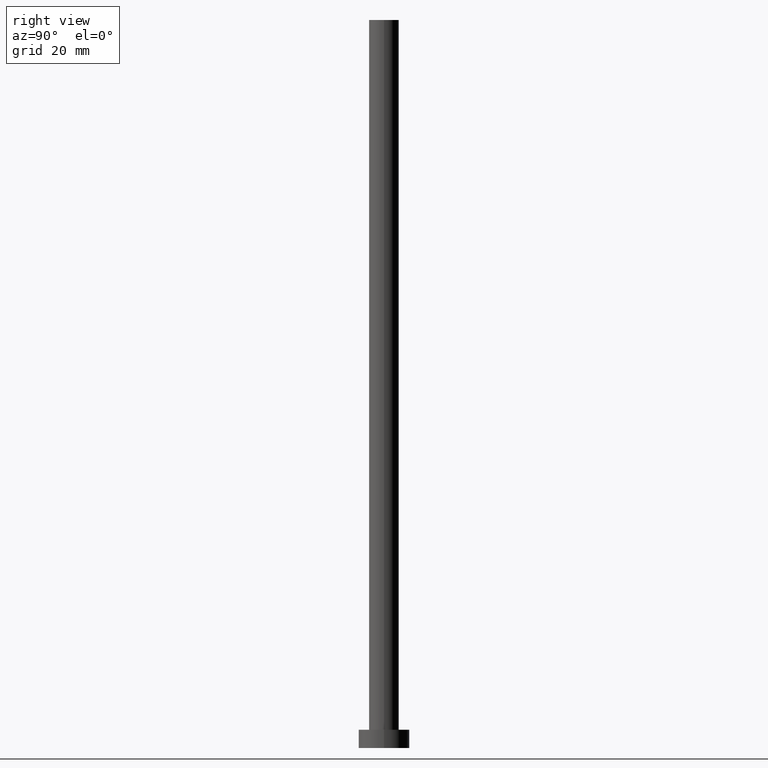
[diagram: clean part render]
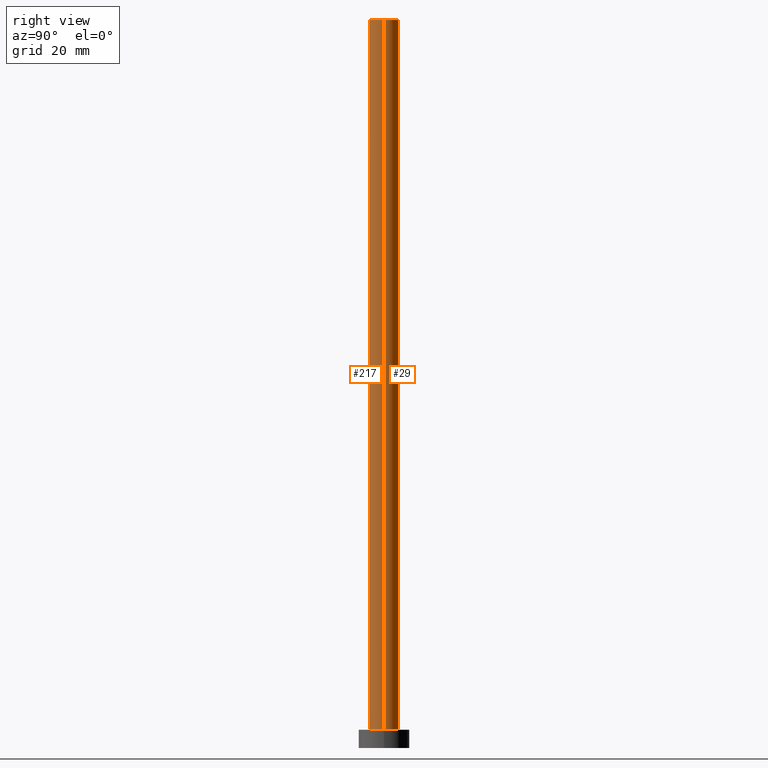
[diagram: same view with one multi-face feature highlighted, each face labeled with its STEP entity id]
A machine part, right view. The highlighted faces form ONE feature: a constant-radius fillet chain: 2 tangent blend faces with common blend radius 4.1 mm. The faces share edges in the B-rep.
Their STEP definitions:
[1] entity #29 (Cylinder):
#6 = EDGE_CURVE ( 'NONE', #192, #249, #180, .T. ) ;
#15 = CARTESIAN_POINT ( 'NONE',  ( 0.000000000000000000, 0.000000000000000000, 200.0000000000000000 ) ) ;
#24 = ORIENTED_EDGE ( 'NONE', *, *, #138, .T. ) ;
#29 = ADVANCED_FACE ( 'NONE', ( #201 ), #73, .T. ) ;
#47 = EDGE_CURVE ( 'NONE', #130, #192, #154, .T. ) ;
#49 = EDGE_LOOP ( 'NONE', ( #153, #24, #80, #78 ) ) ;
#55 = CARTESIAN_POINT ( 'NONE',  ( 0.000000000000000000, 0.000000000000000000, 200.0000000000000000 ) ) ;
#57 = DIRECTION ( 'NONE',  ( 0.000000000000000000, 0.000000000000000000, 1.000000000000000000 ) ) ;
#58 = CARTESIAN_POINT ( 'NONE',  ( 4.099999999999999645, 5.021051876504147385E-16, 5.000000000000000000 ) ) ;
#59 = AXIS2_PLACEMENT_3D ( 'NONE', #55, #75, #197 ) ;
#62 = LINE ( 'NONE', #236, #229 ) ;
#73 = CYLINDRICAL_SURFACE ( 'NONE', #206, 4.099999999999999645 ) ;
#74 = CARTESIAN_POINT ( 'NONE',  ( -4.099999999999999645, 0.000000000000000000, 200.0000000000000000 ) ) ;
#75 = DIRECTION ( 'NONE',  ( 0.000000000000000000, 0.000000000000000000, 1.000000000000000000 ) ) ;
#78 = ORIENTED_EDGE ( 'NONE', *, *, #6, .F. ) ;
#80 = ORIENTED_EDGE ( 'NONE', *, *, #213, .T. ) ;
#94 = CIRCLE ( 'NONE', #239, 4.099999999999999645 ) ;
#127 = CARTESIAN_POINT ( 'NONE',  ( 4.099999999999999645, 5.021051876504147385E-16, 200.0000000000000000 ) ) ;
#130 = VERTEX_POINT ( 'NONE', #127 ) ;
#137 = CARTESIAN_POINT ( 'NONE',  ( -4.099999999999999645, 0.000000000000000000, 200.0000000000000000 ) ) ;
#138 = EDGE_CURVE ( 'NONE', #130, #174, #62, .T. ) ;
#141 = DIRECTION ( 'NONE',  ( -0.000000000000000000, -0.000000000000000000, -1.000000000000000000 ) ) ;
#144 = DIRECTION ( 'NONE',  ( -0.000000000000000000, -0.000000000000000000, -1.000000000000000000 ) ) ;
#153 = ORIENTED_EDGE ( 'NONE', *, *, #47, .F. ) ;
#154 = CIRCLE ( 'NONE', #59, 4.099999999999999645 ) ;
#168 = DIRECTION ( 'NONE',  ( -1.000000000000000000, 0.000000000000000000, 0.000000000000000000 ) ) ;
#169 = CARTESIAN_POINT ( 'NONE',  ( -4.099999999999999645, 0.000000000000000000, 5.000000000000000000 ) ) ;
#174 = VERTEX_POINT ( 'NONE', #58 ) ;
#180 = LINE ( 'NONE', #74, #215 ) ;
#192 = VERTEX_POINT ( 'NONE', #137 ) ;
#197 = DIRECTION ( 'NONE',  ( 1.000000000000000000, 0.000000000000000000, 0.000000000000000000 ) ) ;
#201 = FACE_OUTER_BOUND ( 'NONE', #49, .T. ) ;
#206 = AXIS2_PLACEMENT_3D ( 'NONE', #15, #225, #168 ) ;
#213 = EDGE_CURVE ( 'NONE', #174, #249, #94, .T. ) ;
#215 = VECTOR ( 'NONE', #144, 1000.000000000000000 ) ;
#222 = DIRECTION ( 'NONE',  ( 1.000000000000000000, 0.000000000000000000, 0.000000000000000000 ) ) ;
#225 = DIRECTION ( 'NONE',  ( -0.000000000000000000, -0.000000000000000000, -1.000000000000000000 ) ) ;
#229 = VECTOR ( 'NONE', #141, 1000.000000000000000 ) ;
#236 = CARTESIAN_POINT ( 'NONE',  ( 4.099999999999999645, 5.021051876504147385E-16, 200.0000000000000000 ) ) ;
#239 = AXIS2_PLACEMENT_3D ( 'NONE', #247, #57, #222 ) ;
#247 = CARTESIAN_POINT ( 'NONE',  ( 0.000000000000000000, 0.000000000000000000, 5.000000000000000000 ) ) ;
#249 = VERTEX_POINT ( 'NONE', #169 ) ;
[2] entity #217 (Cylinder):
#6 = EDGE_CURVE ( 'NONE', #192, #249, #180, .T. ) ;
#43 = EDGE_CURVE ( 'NONE', #192, #130, #170, .T. ) ;
#58 = CARTESIAN_POINT ( 'NONE',  ( 4.099999999999999645, 5.021051876504147385E-16, 5.000000000000000000 ) ) ;
#62 = LINE ( 'NONE', #236, #229 ) ;
#66 = CIRCLE ( 'NONE', #90, 4.099999999999999645 ) ;
#69 = CARTESIAN_POINT ( 'NONE',  ( 0.000000000000000000, 0.000000000000000000, 200.0000000000000000 ) ) ;
#70 = AXIS2_PLACEMENT_3D ( 'NONE', #120, #145, #240 ) ;
#74 = CARTESIAN_POINT ( 'NONE',  ( -4.099999999999999645, 0.000000000000000000, 200.0000000000000000 ) ) ;
#85 = DIRECTION ( 'NONE',  ( 1.000000000000000000, 0.000000000000000000, 0.000000000000000000 ) ) ;
#90 = AXIS2_PLACEMENT_3D ( 'NONE', #179, #165, #85 ) ;
#93 = AXIS2_PLACEMENT_3D ( 'NONE', #69, #121, #106 ) ;
#106 = DIRECTION ( 'NONE',  ( 1.000000000000000000, 0.000000000000000000, 0.000000000000000000 ) ) ;
#112 = EDGE_LOOP ( 'NONE', ( #254, #237, #131, #172 ) ) ;
#120 = CARTESIAN_POINT ( 'NONE',  ( 0.000000000000000000, 0.000000000000000000, 200.0000000000000000 ) ) ;
#121 = DIRECTION ( 'NONE',  ( 0.000000000000000000, 0.000000000000000000, 1.000000000000000000 ) ) ;
#127 = CARTESIAN_POINT ( 'NONE',  ( 4.099999999999999645, 5.021051876504147385E-16, 200.0000000000000000 ) ) ;
#130 = VERTEX_POINT ( 'NONE', #127 ) ;
#131 = ORIENTED_EDGE ( 'NONE', *, *, #6, .T. ) ;
#137 = CARTESIAN_POINT ( 'NONE',  ( -4.099999999999999645, 0.000000000000000000, 200.0000000000000000 ) ) ;
#138 = EDGE_CURVE ( 'NONE', #130, #174, #62, .T. ) ;
#141 = DIRECTION ( 'NONE',  ( -0.000000000000000000, -0.000000000000000000, -1.000000000000000000 ) ) ;
#144 = DIRECTION ( 'NONE',  ( -0.000000000000000000, -0.000000000000000000, -1.000000000000000000 ) ) ;
#145 = DIRECTION ( 'NONE',  ( -0.000000000000000000, -0.000000000000000000, -1.000000000000000000 ) ) ;
#156 = FACE_OUTER_BOUND ( 'NONE', #112, .T. ) ;
#165 = DIRECTION ( 'NONE',  ( 0.000000000000000000, 0.000000000000000000, 1.000000000000000000 ) ) ;
#169 = CARTESIAN_POINT ( 'NONE',  ( -4.099999999999999645, 0.000000000000000000, 5.000000000000000000 ) ) ;
#170 = CIRCLE ( 'NONE', #93, 4.099999999999999645 ) ;
#172 = ORIENTED_EDGE ( 'NONE', *, *, #194, .T. ) ;
#174 = VERTEX_POINT ( 'NONE', #58 ) ;
#179 = CARTESIAN_POINT ( 'NONE',  ( 0.000000000000000000, 0.000000000000000000, 5.000000000000000000 ) ) ;
#180 = LINE ( 'NONE', #74, #215 ) ;
#192 = VERTEX_POINT ( 'NONE', #137 ) ;
#194 = EDGE_CURVE ( 'NONE', #249, #174, #66, .T. ) ;
#207 = CYLINDRICAL_SURFACE ( 'NONE', #70, 4.099999999999999645 ) ;
#215 = VECTOR ( 'NONE', #144, 1000.000000000000000 ) ;
#217 = ADVANCED_FACE ( 'NONE', ( #156 ), #207, .T. ) ;
#229 = VECTOR ( 'NONE', #141, 1000.000000000000000 ) ;
#236 = CARTESIAN_POINT ( 'NONE',  ( 4.099999999999999645, 5.021051876504147385E-16, 200.0000000000000000 ) ) ;
#237 = ORIENTED_EDGE ( 'NONE', *, *, #43, .F. ) ;
#240 = DIRECTION ( 'NONE',  ( -1.000000000000000000, 0.000000000000000000, 0.000000000000000000 ) ) ;
#249 = VERTEX_POINT ( 'NONE', #169 ) ;
#254 = ORIENTED_EDGE ( 'NONE', *, *, #138, .F. ) ;